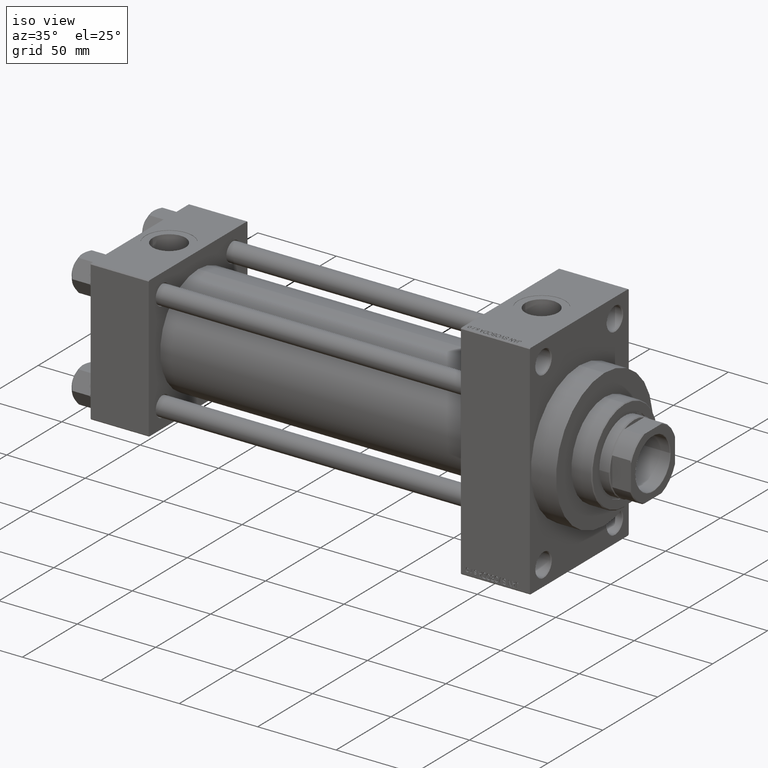
[diagram: clean part render]
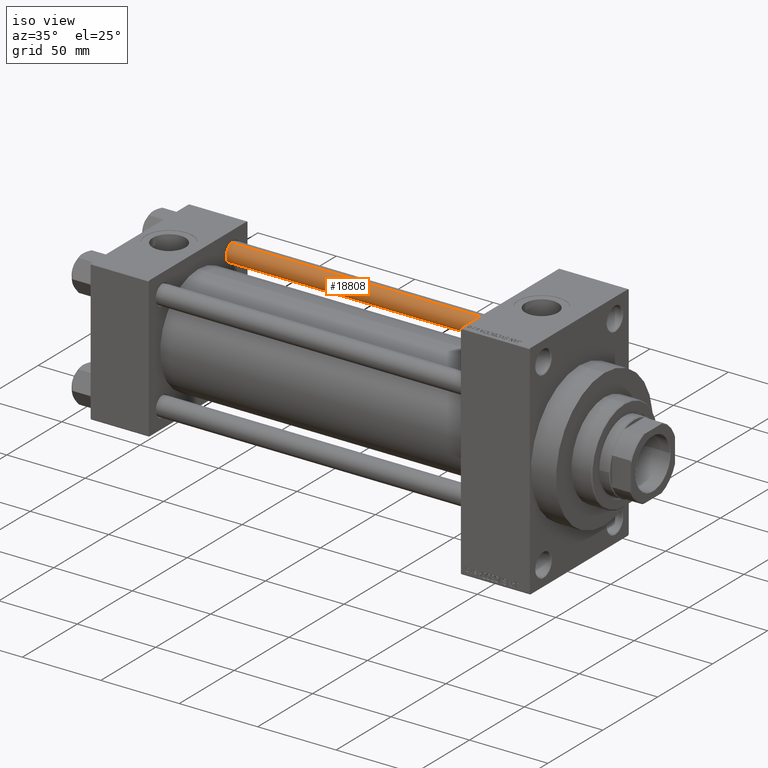
[diagram: same view with one face highlighted and labeled with its STEP entity id]
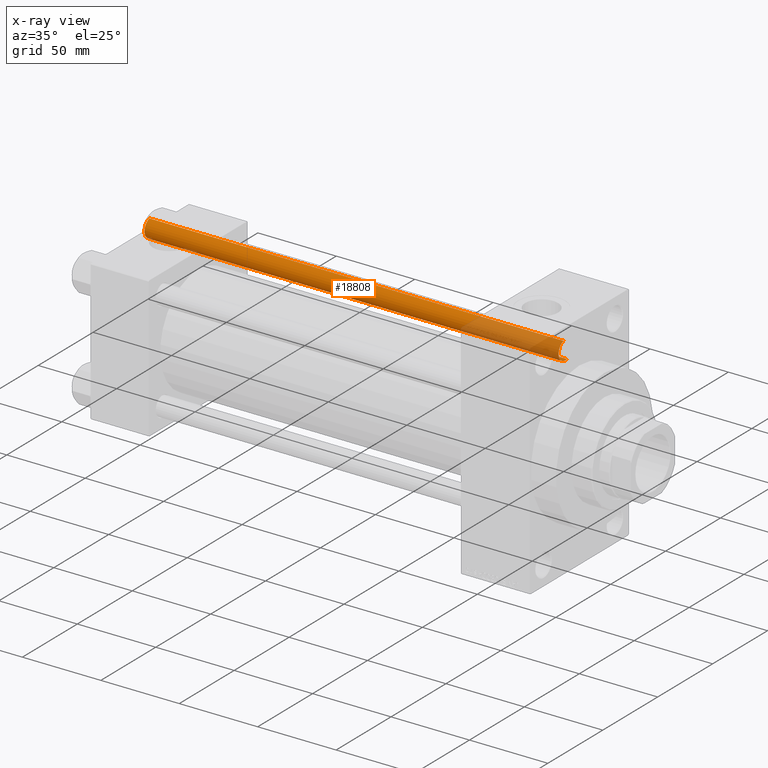
[diagram: x-ray of the same camera — body ghosted, the highlighted face saturated]
A machine part, iso view. The second image highlights one B-rep face of the part: STEP entity #18808.
The next image is the same camera in x-ray: the body ghosted, the highlighted face saturated — about 22% of this face is hidden behind the body in this view.
In plain terms, the highlighted cylindrical surface (edge-blend (fillet) strip) has radius 6 mm, axis along (-1, -0, 0).
Its self-contained STEP definition (entity closure, byte-faithful):
#679 = EDGE_CURVE ( 'NONE', #24491, #6877, #44995, .T. ) ;
#1685 = AXIS2_PLACEMENT_3D ( 'NONE', #14701, #22337, #25437 ) ;
#2826 = DIRECTION ( 'NONE',  ( -1.000000000000000000, 0.000000000000000000, 0.000000000000000000 ) ) ;
#4715 = VERTEX_POINT ( 'NONE', #42761 ) ;
#6877 = VERTEX_POINT ( 'NONE', #10962 ) ;
#9923 = AXIS2_PLACEMENT_3D ( 'NONE', #35449, #28317, #2826 ) ;
#10962 = CARTESIAN_POINT ( 'NONE',  ( -6.000000000000000888, 0.000000000000000000, 0.5000000000000004441 ) ) ;
#11906 = VECTOR ( 'NONE', #15042, 1000.000000000000000 ) ;
#13787 = CYLINDRICAL_SURFACE ( 'NONE', #9923, 6.000000000000000888 ) ;
#14701 = CARTESIAN_POINT ( 'NONE',  ( 0.000000000000000000, 0.000000000000000000, 0.5000000000000004441 ) ) ;
#14795 = LINE ( 'NONE', #25997, #11906 ) ;
#15042 = DIRECTION ( 'NONE',  ( -0.000000000000000000, -0.000000000000000000, -1.000000000000000000 ) ) ;
#15572 = EDGE_CURVE ( 'NONE', #4715, #40192, #14795, .T. ) ;
#16723 = CARTESIAN_POINT ( 'NONE',  ( 0.000000000000000000, 0.000000000000000000, 264.5000000000000000 ) ) ;
#16895 = ORIENTED_EDGE ( 'NONE', *, *, #44565, .T. ) ;
#17860 = ORIENTED_EDGE ( 'NONE', *, *, #679, .T. ) ;
#18634 = ORIENTED_EDGE ( 'NONE', *, *, #26814, .T. ) ;
#18808 = ADVANCED_FACE ( 'NONE', ( #46430 ), #13787, .T. ) ;
#19289 = EDGE_LOOP ( 'NONE', ( #27453, #16895, #17860, #18634 ) ) ;
#19638 = CIRCLE ( 'NONE', #43993, 6.000000000000000888 ) ;
#22337 = DIRECTION ( 'NONE',  ( -0.000000000000000000, -0.000000000000000000, 1.000000000000000000 ) ) ;
#24491 = VERTEX_POINT ( 'NONE', #26697 ) ;
#25437 = DIRECTION ( 'NONE',  ( 1.000000000000000000, 0.000000000000000000, 0.000000000000000000 ) ) ;
#25997 = CARTESIAN_POINT ( 'NONE',  ( 6.000000000000000888, 7.347880794884120722E-16, 265.0000000000000000 ) ) ;
#26697 = CARTESIAN_POINT ( 'NONE',  ( -6.000000000000000888, 0.000000000000000000, 264.5000000000000000 ) ) ;
#26814 = EDGE_CURVE ( 'NONE', #6877, #40192, #36668, .T. ) ;
#27453 = ORIENTED_EDGE ( 'NONE', *, *, #15572, .F. ) ;
#28317 = DIRECTION ( 'NONE',  ( -0.000000000000000000, -0.000000000000000000, -1.000000000000000000 ) ) ;
#31170 = CARTESIAN_POINT ( 'NONE',  ( -6.000000000000000888, 0.000000000000000000, 265.0000000000000000 ) ) ;
#31728 = DIRECTION ( 'NONE',  ( 0.000000000000000000, 0.000000000000000000, -1.000000000000000000 ) ) ;
#35449 = CARTESIAN_POINT ( 'NONE',  ( 0.000000000000000000, 0.000000000000000000, 265.0000000000000000 ) ) ;
#36668 = CIRCLE ( 'NONE', #1685, 6.000000000000000888 ) ;
#37178 = CARTESIAN_POINT ( 'NONE',  ( 6.000000000000000888, 7.347880794884120722E-16, 0.5000000000000004441 ) ) ;
#40192 = VERTEX_POINT ( 'NONE', #37178 ) ;
#42462 = DIRECTION ( 'NONE',  ( 1.000000000000000000, 0.000000000000000000, 0.000000000000000000 ) ) ;
#42761 = CARTESIAN_POINT ( 'NONE',  ( 6.000000000000000888, 7.347880794884120722E-16, 264.5000000000000000 ) ) ;
#42763 = VECTOR ( 'NONE', #45708, 1000.000000000000000 ) ;
#43993 = AXIS2_PLACEMENT_3D ( 'NONE', #16723, #31728, #42462 ) ;
#44565 = EDGE_CURVE ( 'NONE', #4715, #24491, #19638, .T. ) ;
#44995 = LINE ( 'NONE', #31170, #42763 ) ;
#45708 = DIRECTION ( 'NONE',  ( -0.000000000000000000, -0.000000000000000000, -1.000000000000000000 ) ) ;
#46430 = FACE_OUTER_BOUND ( 'NONE', #19289, .T. ) ;